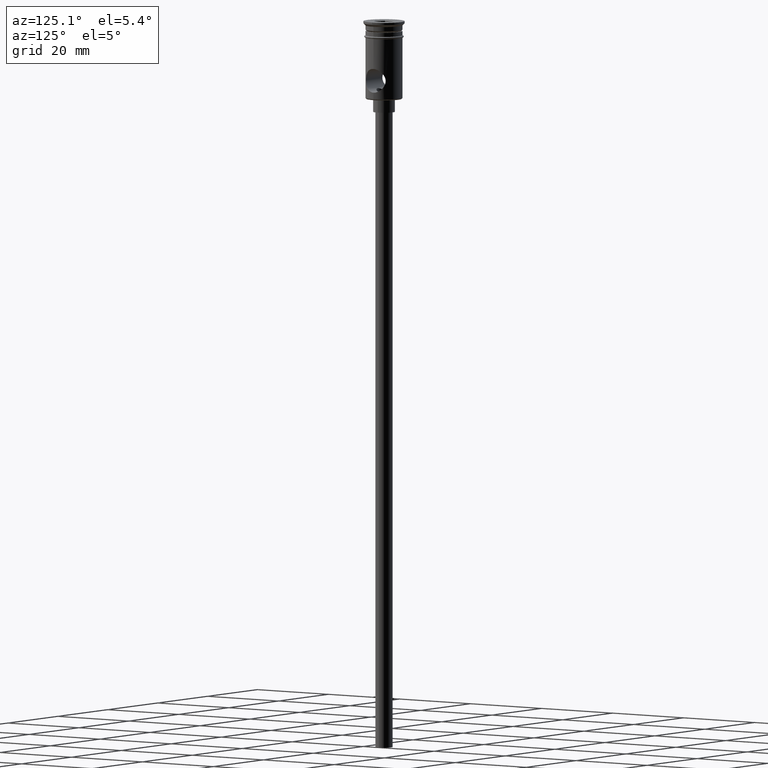
[diagram: clean part render]
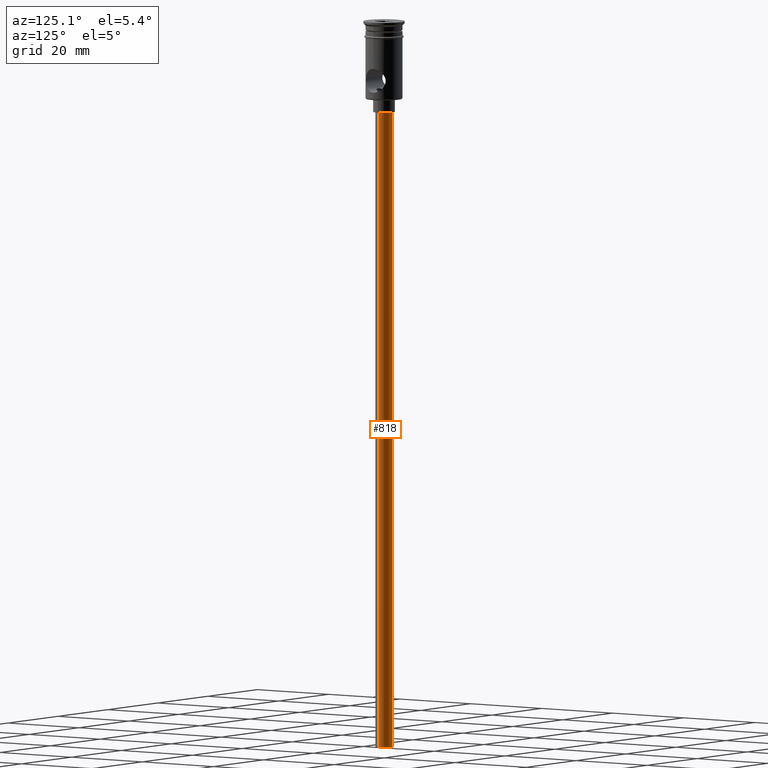
[diagram: same view with one face highlighted and labeled with its STEP entity id]
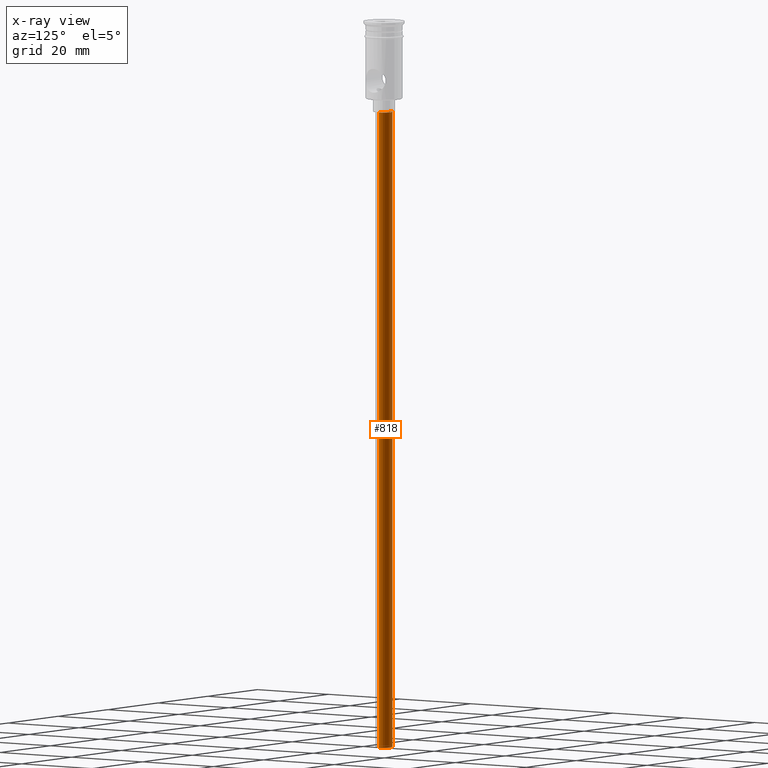
[diagram: x-ray of the same camera — body ghosted, the highlighted face saturated]
A machine part, auxiliary view. The second image highlights one B-rep face of the part: STEP entity #818.
The next image is the same camera in x-ray: the body ghosted, the highlighted face saturated — about 0% of this face is hidden behind the body in this view.
In plain terms, the highlighted cylindrical surface (edge-blend (fillet) strip) has radius 2 mm, axis along (-0, -0, 1).
Its self-contained STEP definition (entity closure, byte-faithful):
#23 = VERTEX_POINT ( 'NONE', #323 ) ;
#32 = VERTEX_POINT ( 'NONE', #212 ) ;
#102 = DIRECTION ( 'NONE',  ( 0.000000000000000000, 0.000000000000000000, -1.000000000000000000 ) ) ;
#121 = CARTESIAN_POINT ( 'NONE',  ( -2.000000000000000000, 2.449293598294706414E-16, -167.9999999999999716 ) ) ;
#141 = DIRECTION ( 'NONE',  ( -0.000000000000000000, -0.000000000000000000, 1.000000000000000000 ) ) ;
#159 = CARTESIAN_POINT ( 'NONE',  ( 2.000000000000000000, 0.000000000000000000, -167.9999999999999716 ) ) ;
#167 = DIRECTION ( 'NONE',  ( 0.000000000000000000, 0.000000000000000000, -1.000000000000000000 ) ) ;
#183 = VECTOR ( 'NONE', #443, 1000.000000000000000 ) ;
#212 = CARTESIAN_POINT ( 'NONE',  ( -2.000000000000000000, 2.449293598294706414E-16, -167.9999999999999716 ) ) ;
#229 = CIRCLE ( 'NONE', #428, 2.000000000000000000 ) ;
#239 = CARTESIAN_POINT ( 'NONE',  ( 2.000000000000000000, 0.000000000000000000, -20.99999999999999645 ) ) ;
#258 = LINE ( 'NONE', #159, #1096 ) ;
#265 = FACE_OUTER_BOUND ( 'NONE', #1408, .T. ) ;
#323 = CARTESIAN_POINT ( 'NONE',  ( -2.000000000000000000, 2.449293598294706414E-16, -20.99999999999999645 ) ) ;
#353 = CARTESIAN_POINT ( 'NONE',  ( 0.000000000000000000, 0.000000000000000000, -167.9999999999999716 ) ) ;
#386 = AXIS2_PLACEMENT_3D ( 'NONE', #778, #141, #797 ) ;
#428 = AXIS2_PLACEMENT_3D ( 'NONE', #1293, #102, #831 ) ;
#443 = DIRECTION ( 'NONE',  ( -0.000000000000000000, -0.000000000000000000, 1.000000000000000000 ) ) ;
#467 = EDGE_CURVE ( 'NONE', #23, #1214, #229, .T. ) ;
#496 = AXIS2_PLACEMENT_3D ( 'NONE', #353, #167, #923 ) ;
#570 = DIRECTION ( 'NONE',  ( -0.000000000000000000, -0.000000000000000000, 1.000000000000000000 ) ) ;
#663 = ORIENTED_EDGE ( 'NONE', *, *, #1151, .T. ) ;
#728 = VERTEX_POINT ( 'NONE', #1404 ) ;
#778 = CARTESIAN_POINT ( 'NONE',  ( 0.000000000000000000, 0.000000000000000000, -167.9999999999999716 ) ) ;
#797 = DIRECTION ( 'NONE',  ( 1.000000000000000000, 0.000000000000000000, 0.000000000000000000 ) ) ;
#818 = ADVANCED_FACE ( 'NONE', ( #265 ), #1361, .T. ) ;
#831 = DIRECTION ( 'NONE',  ( -1.000000000000000000, 0.000000000000000000, 0.000000000000000000 ) ) ;
#834 = ORIENTED_EDGE ( 'NONE', *, *, #467, .T. ) ;
#839 = ORIENTED_EDGE ( 'NONE', *, *, #987, .F. ) ;
#856 = EDGE_CURVE ( 'NONE', #32, #728, #1119, .T. ) ;
#923 = DIRECTION ( 'NONE',  ( -1.000000000000000000, 0.000000000000000000, 0.000000000000000000 ) ) ;
#987 = EDGE_CURVE ( 'NONE', #728, #1214, #258, .T. ) ;
#1096 = VECTOR ( 'NONE', #570, 1000.000000000000000 ) ;
#1119 = CIRCLE ( 'NONE', #496, 2.000000000000000000 ) ;
#1151 = EDGE_CURVE ( 'NONE', #32, #23, #1324, .T. ) ;
#1214 = VERTEX_POINT ( 'NONE', #239 ) ;
#1293 = CARTESIAN_POINT ( 'NONE',  ( 0.000000000000000000, 0.000000000000000000, -20.99999999999999645 ) ) ;
#1324 = LINE ( 'NONE', #121, #183 ) ;
#1361 = CYLINDRICAL_SURFACE ( 'NONE', #386, 2.000000000000000000 ) ;
#1379 = ORIENTED_EDGE ( 'NONE', *, *, #856, .F. ) ;
#1404 = CARTESIAN_POINT ( 'NONE',  ( 2.000000000000000000, 0.000000000000000000, -167.9999999999999716 ) ) ;
#1408 = EDGE_LOOP ( 'NONE', ( #1379, #663, #834, #839 ) ) ;